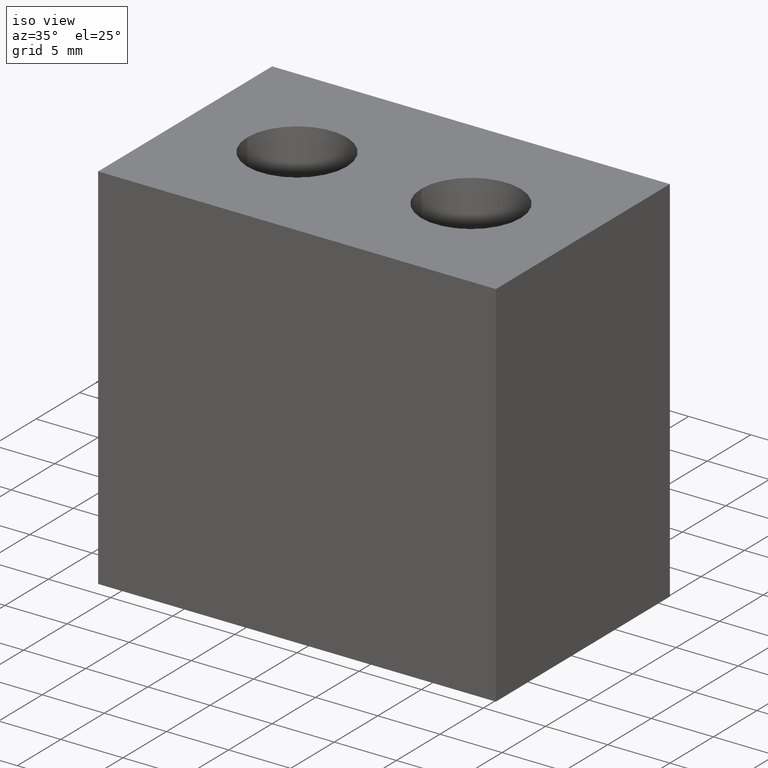
[diagram: clean part render]
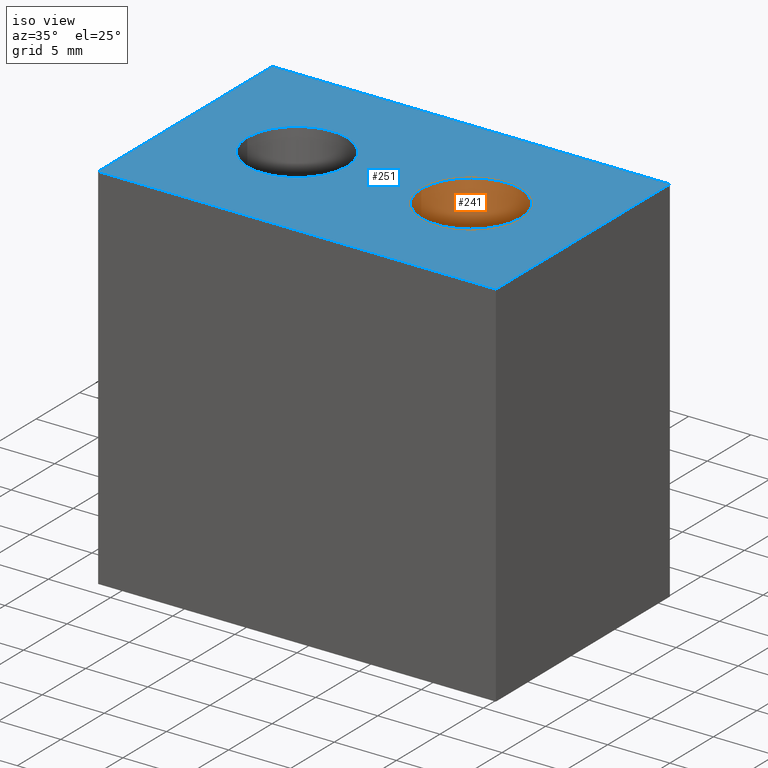
[diagram: same view with the hole feature highlighted: cylindrical wall and planar end face, labeled with their STEP entity ids]
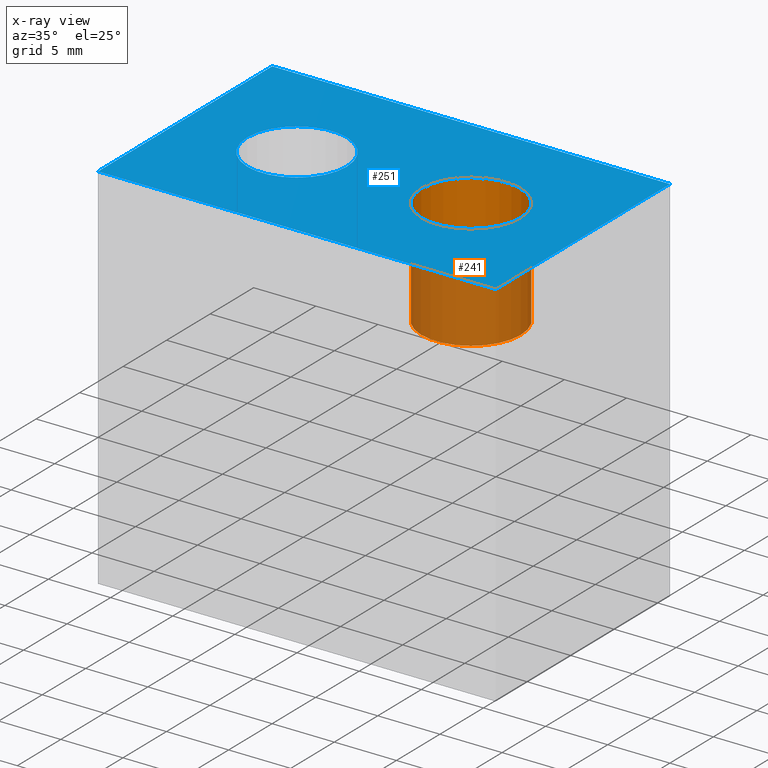
[diagram: x-ray of the same camera — body ghosted, the hole faces saturated]
A machine part, iso view. The highlighted faces form one hole feature of diameter 8 mm: the cylindrical wall (entity #241, orange) and its adjacent planar end face (entity #251, blue) — they share a circular edge in the B-rep.
The next image is the same camera in x-ray (body ghosted, the hole faces saturated) — the bore reads through the body.
Wall:
#37=FACE_OUTER_BOUND('',#55,.T.);
#55=EDGE_LOOP('',(#183,#184,#185,#186));
#75=LINE('',#403,#93);
#93=VECTOR('',#332,4.);
#115=CIRCLE('',#287,4.);
#116=CIRCLE('',#288,4.);
#127=VERTEX_POINT('',#400);
#128=VERTEX_POINT('',#402);
#149=EDGE_CURVE('',#127,#127,#115,.T.);
#150=EDGE_CURVE('',#127,#128,#75,.T.);
#151=EDGE_CURVE('',#128,#128,#116,.T.);
#183=ORIENTED_EDGE('',*,*,#149,.F.);
#184=ORIENTED_EDGE('',*,*,#150,.T.);
#185=ORIENTED_EDGE('',*,*,#151,.F.);
#186=ORIENTED_EDGE('',*,*,#150,.F.);
#233=CYLINDRICAL_SURFACE('',#286,4.);
#241=ADVANCED_FACE('',(#37),#233,.F.);
#286=AXIS2_PLACEMENT_3D('',#399,#328,#329);
#287=AXIS2_PLACEMENT_3D('',#401,#330,#331);
#288=AXIS2_PLACEMENT_3D('',#404,#333,#334);
#328=DIRECTION('center_axis',(0.,0.,1.));
#329=DIRECTION('ref_axis',(1.,0.,0.));
#330=DIRECTION('center_axis',(0.,0.,-1.));
#331=DIRECTION('ref_axis',(1.,0.,0.));
#332=DIRECTION('',(0.,0.,-1.));
#333=DIRECTION('center_axis',(0.,0.,1.));
#334=DIRECTION('ref_axis',(1.,0.,0.));
#399=CARTESIAN_POINT('Origin',(7.,5.33101755084625E-15,25.75));
#400=CARTESIAN_POINT('',(3.,4.84115883118731E-15,30.));
#401=CARTESIAN_POINT('Origin',(7.,5.33101755084625E-15,30.));
#402=CARTESIAN_POINT('',(3.,4.84115883118731E-15,21.5));
#403=CARTESIAN_POINT('',(3.,4.84115883118731E-15,25.75));
#404=CARTESIAN_POINT('Origin',(7.,5.33101755084625E-15,21.5));
End face:
#19=FACE_BOUND('',#68,.T.);
#20=FACE_BOUND('',#69,.T.);
#31=PLANE('',#302);
#47=FACE_OUTER_BOUND('',#67,.T.);
#67=EDGE_LOOP('',(#219,#220,#221,#222));
#68=EDGE_LOOP('',(#223));
#69=EDGE_LOOP('',(#224));
#81=LINE('',#428,#99);
#84=LINE('',#434,#102);
#87=LINE('',#440,#105);
#90=LINE('',#444,#108);
#99=VECTOR('',#360,10.);
#102=VECTOR('',#365,10.);
#105=VECTOR('',#370,10.);
#108=VECTOR('',#375,10.);
#115=CIRCLE('',#287,4.);
#118=CIRCLE('',#292,4.);
#127=VERTEX_POINT('',#400);
#130=VERTEX_POINT('',#409);
#135=VERTEX_POINT('',#425);
#136=VERTEX_POINT('',#427);
#138=VERTEX_POINT('',#433);
#140=VERTEX_POINT('',#439);
#149=EDGE_CURVE('',#127,#127,#115,.T.);
#153=EDGE_CURVE('',#130,#130,#118,.T.);
#161=EDGE_CURVE('',#136,#135,#81,.T.);
#164=EDGE_CURVE('',#138,#136,#84,.T.);
#167=EDGE_CURVE('',#140,#138,#87,.T.);
#170=EDGE_CURVE('',#135,#140,#90,.T.);
#219=ORIENTED_EDGE('',*,*,#170,.T.);
#220=ORIENTED_EDGE('',*,*,#167,.T.);
#221=ORIENTED_EDGE('',*,*,#164,.T.);
#222=ORIENTED_EDGE('',*,*,#161,.T.);
#223=ORIENTED_EDGE('',*,*,#149,.T.);
#224=ORIENTED_EDGE('',*,*,#153,.T.);
#251=ADVANCED_FACE('',(#47,#19,#20),#31,.T.);
#287=AXIS2_PLACEMENT_3D('',#401,#330,#331);
#292=AXIS2_PLACEMENT_3D('',#410,#341,#342);
#302=AXIS2_PLACEMENT_3D('',#445,#376,#377);
#330=DIRECTION('center_axis',(0.,0.,-1.));
#331=DIRECTION('ref_axis',(1.,0.,0.));
#341=DIRECTION('center_axis',(0.,0.,-1.));
#342=DIRECTION('ref_axis',(1.,0.,0.));
#360=DIRECTION('',(1.,-3.46944695195361E-17,0.));
#365=DIRECTION('',(2.22044604925031E-16,-1.,0.));
#370=DIRECTION('',(-1.,-1.04083408558608E-16,0.));
#375=DIRECTION('',(-4.44089209850063E-16,1.,0.));
#376=DIRECTION('center_axis',(0.,0.,1.));
#377=DIRECTION('ref_axis',(1.,0.,0.));
#400=CARTESIAN_POINT('',(3.,4.84115883118731E-15,30.));
#401=CARTESIAN_POINT('Origin',(7.,5.33101755084625E-15,30.));
#409=CARTESIAN_POINT('',(-11.,-1.37609010671357E-15,30.));
#410=CARTESIAN_POINT('Origin',(-7.,-8.86231387054631E-16,30.));
#425=CARTESIAN_POINT('',(16.,-10.,30.));
#427=CARTESIAN_POINT('',(-16.,-10.,30.));
#428=CARTESIAN_POINT('',(-16.,-10.,30.));
#433=CARTESIAN_POINT('',(-16.,10.,30.));
#434=CARTESIAN_POINT('',(-16.,10.,30.));
#439=CARTESIAN_POINT('',(16.,10.,30.));
#440=CARTESIAN_POINT('',(16.,10.,30.));
#444=CARTESIAN_POINT('',(16.,-10.,30.));
#445=CARTESIAN_POINT('Origin',(2.22044604925031E-15,2.22044604925031E-15,
30.));